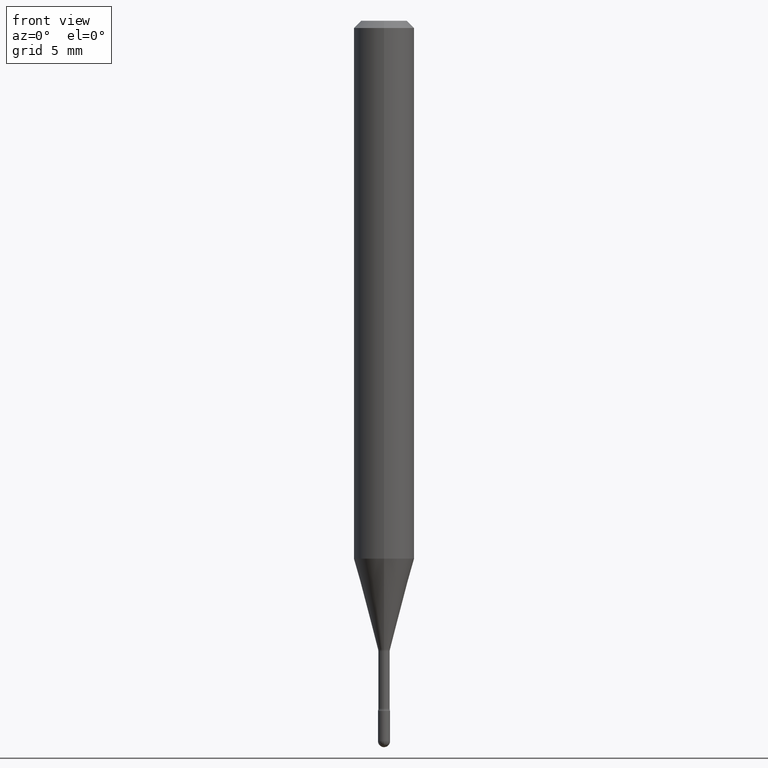
[diagram: clean part render]
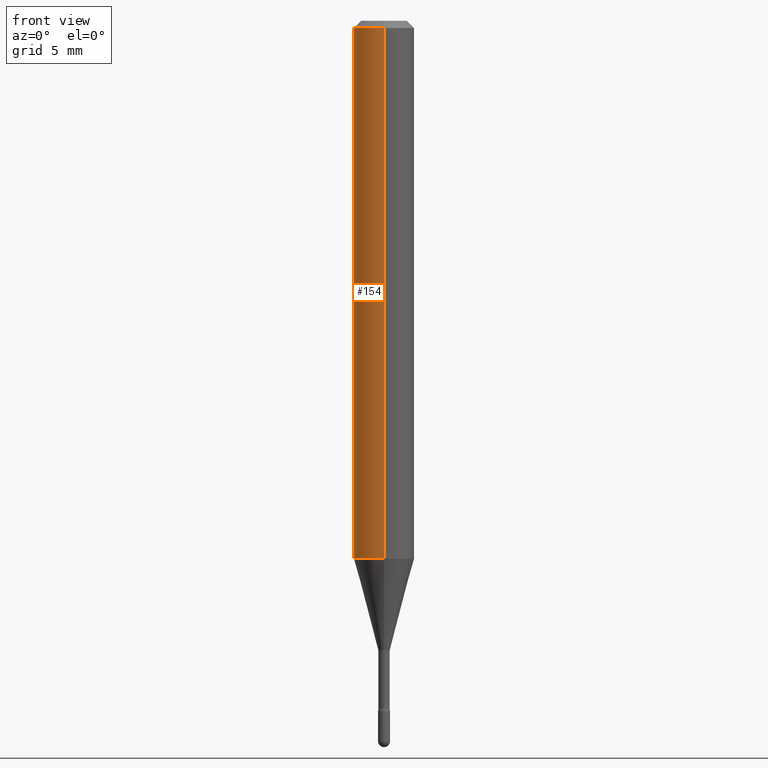
[diagram: same view with one face highlighted and labeled with its STEP entity id]
A machine part, front view. The second image highlights one B-rep face of the part: STEP entity #154.
In plain terms, the highlighted cylindrical surface (edge-blend (fillet) strip) has radius 1.5875 mm, axis along (-0, 0, 1).
Its self-contained STEP definition (entity closure, byte-faithful):
#34 = DIRECTION ( 'NONE',  ( -6.982962677686265922E-15, -1.000000000000000000, 4.370956789862821150E-15 ) ) ;
#36 = DIRECTION ( 'NONE',  ( -2.445362175932988378E-29, 3.491634039433238901E-15, 1.000000000000000000 ) ) ;
#37 = EDGE_CURVE ( 'NONE', #467, #414, #210, .T. ) ;
#72 = ORIENTED_EDGE ( 'NONE', *, *, #89, .T. ) ;
#78 = DIRECTION ( 'NONE',  ( -6.982962677686265922E-15, -1.000000000000000000, 3.483106191921935554E-15 ) ) ;
#89 = EDGE_CURVE ( 'NONE', #279, #467, #125, .T. ) ;
#101 = AXIS2_PLACEMENT_3D ( 'NONE', #336, #36, #78 ) ;
#116 = DIRECTION ( 'NONE',  ( -2.445362175932988378E-29, 3.491634039433238901E-15, 1.000000000000000000 ) ) ;
#125 = CIRCLE ( 'NONE', #331, 0.06250000000000000000 ) ;
#154 = ADVANCED_FACE ( 'NONE', ( #529 ), #526, .T. ) ;
#167 = DIRECTION ( 'NONE',  ( -6.982962677686265922E-15, -1.000000000000000000, 3.491634039433238901E-15 ) ) ;
#171 = CARTESIAN_POINT ( 'NONE',  ( 4.440892098500625669E-16, 0.06250000000000000000, 2.598462714266686566E-16 ) ) ;
#193 = EDGE_CURVE ( 'NONE', #497, #414, #491, .T. ) ;
#196 = CARTESIAN_POINT ( 'NONE',  ( 4.440892098500896347E-16, 0.06249999999999612116, -1.110598421515880174 ) ) ;
#202 = EDGE_LOOP ( 'NONE', ( #415, #72, #437, #412 ) ) ;
#210 = LINE ( 'NONE', #475, #505 ) ;
#213 = CARTESIAN_POINT ( 'NONE',  ( -1.169113584055446105E-44, 1.669184350826100908E-30, 4.780733988912460139E-16 ) ) ;
#239 = DIRECTION ( 'NONE',  ( -2.445362175932988378E-29, 3.491634039433238901E-15, 1.000000000000000000 ) ) ;
#240 = CARTESIAN_POINT ( 'NONE',  ( -4.364351673553912750E-16, -0.06250000000000005551, -0.01499999999999986587 ) ) ;
#242 = CARTESIAN_POINT ( 'NONE',  ( 2.715815372625813924E-29, -3.877803252705670068E-15, -1.110598421515879952 ) ) ;
#279 = VERTEX_POINT ( 'NONE', #196 ) ;
#283 = DIRECTION ( 'NONE',  ( -2.445362175932988378E-29, 3.491634039433238901E-15, 1.000000000000000000 ) ) ;
#331 = AXIS2_PLACEMENT_3D ( 'NONE', #242, #239, #34 ) ;
#336 = CARTESIAN_POINT ( 'NONE',  ( 3.668043263899502851E-31, -5.237451059149887318E-17, -0.01500000000000008271 ) ) ;
#339 = LINE ( 'NONE', #171, #500 ) ;
#393 = CARTESIAN_POINT ( 'NONE',  ( 4.440892098500899305E-16, 0.06249999999999995143, -0.01500000000000030129 ) ) ;
#400 = AXIS2_PLACEMENT_3D ( 'NONE', #213, #283, #167 ) ;
#412 = ORIENTED_EDGE ( 'NONE', *, *, #193, .F. ) ;
#414 = VERTEX_POINT ( 'NONE', #240 ) ;
#415 = ORIENTED_EDGE ( 'NONE', *, *, #537, .F. ) ;
#435 = DIRECTION ( 'NONE',  ( -2.445362175932988378E-29, 3.491634039433238901E-15, 1.000000000000000000 ) ) ;
#437 = ORIENTED_EDGE ( 'NONE', *, *, #37, .T. ) ;
#467 = VERTEX_POINT ( 'NONE', #548 ) ;
#475 = CARTESIAN_POINT ( 'NONE',  ( -4.364351673553916201E-16, -0.06250000000000000000, 6.963005263558235192E-16 ) ) ;
#491 = CIRCLE ( 'NONE', #101, 0.06250000000000000000 ) ;
#497 = VERTEX_POINT ( 'NONE', #393 ) ;
#500 = VECTOR ( 'NONE', #435, 39.37007874015748143 ) ;
#505 = VECTOR ( 'NONE', #116, 39.37007874015748143 ) ;
#526 = CYLINDRICAL_SURFACE ( 'NONE', #400, 0.06250000000000000000 ) ;
#529 = FACE_OUTER_BOUND ( 'NONE', #202, .T. ) ;
#537 = EDGE_CURVE ( 'NONE', #279, #497, #339, .T. ) ;
#548 = CARTESIAN_POINT ( 'NONE',  ( -4.364351673553645523E-16, -0.06250000000000388578, -1.110598421515879730 ) ) ;